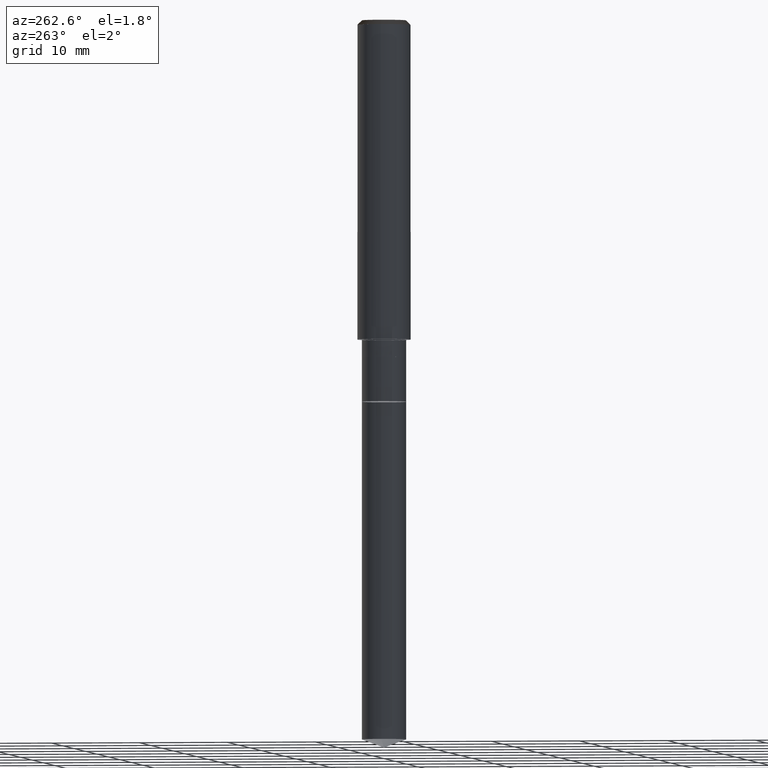
[diagram: clean part render]
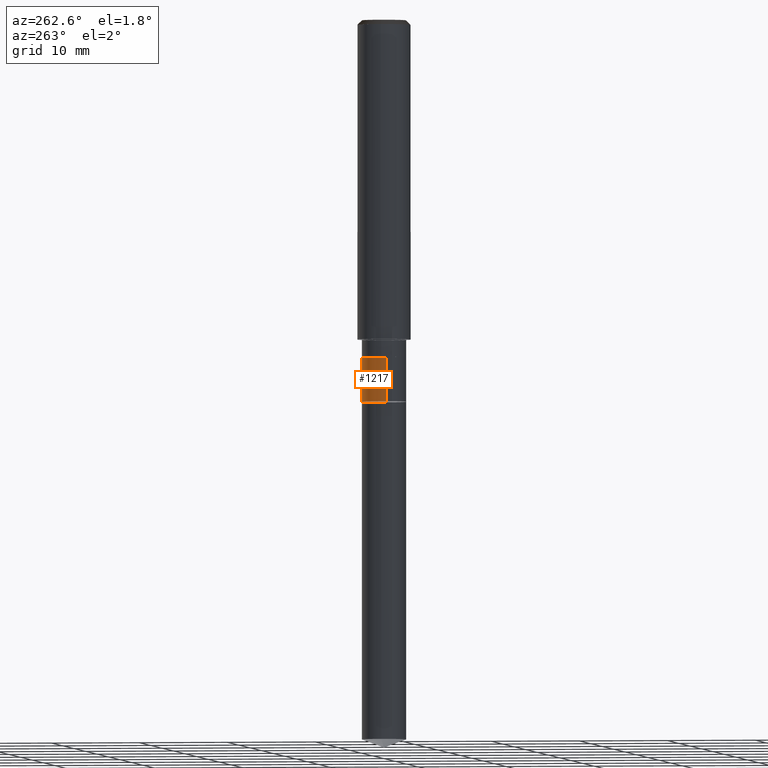
[diagram: same view with one face highlighted and labeled with its STEP entity id]
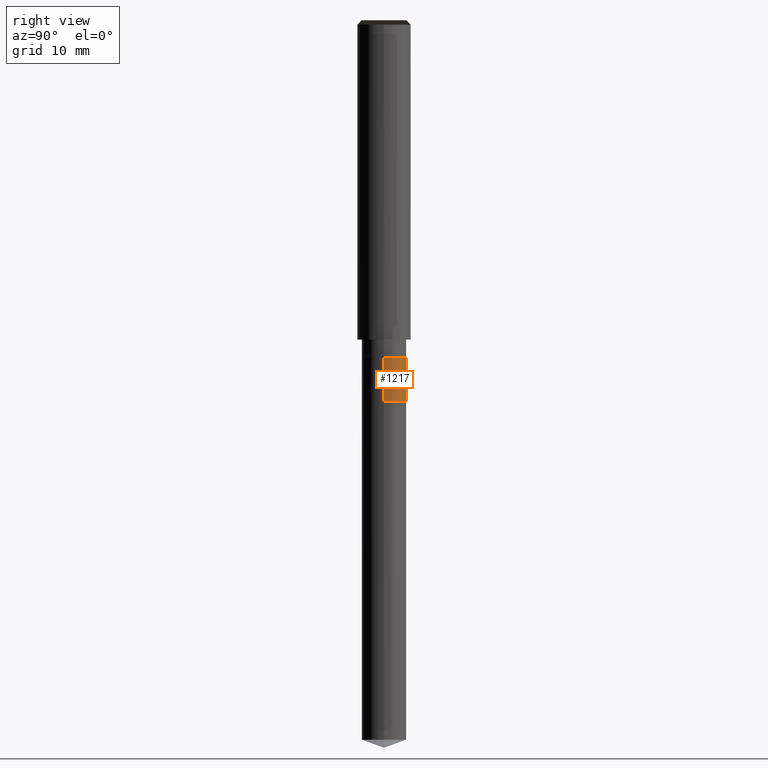
[diagram: same view with one face highlighted and labeled with its STEP entity id]
A machine part, auxiliary view. The second image highlights one B-rep face of the part: STEP entity #1217.
A second angle (right view) of the same face is appended — the face is thin or edge-on in the first view.
In plain terms, the highlighted face is a freeform B-spline surface patch.
Its self-contained STEP definition (entity closure, byte-faithful):
#1016=CARTESIAN_POINT('',(2.5,0.0,-7.0));
#1017=CARTESIAN_POINT('',(2.5,2.5,-7.0));
#1018=CARTESIAN_POINT('',(0.0,2.5,-7.0));
#1019=CARTESIAN_POINT('',(-2.5,2.5,-7.0));
#1020=CARTESIAN_POINT('',(-2.5,0.0,-7.0));
#1028=CARTESIAN_POINT('',(2.5,0.0,-2.0));
#1029=CARTESIAN_POINT('',(2.5,2.5,-2.0));
#1030=CARTESIAN_POINT('',(0.0,2.5,-2.0));
#1031=CARTESIAN_POINT('',(-2.5,2.5,-2.0));
#1032=CARTESIAN_POINT('',(-2.5,0.0,-2.0));
#1198=(
BOUNDED_SURFACE()
B_SPLINE_SURFACE(1,2,(
(#1016,#1017,#1018,#1019,#1020),
(#1028,#1029,#1030,#1031,#1032)
), .UNSPECIFIED.,.F.,.F.,.F.)
B_SPLINE_SURFACE_WITH_KNOTS((2,2),(3,2,3),(
0.0,1.0),(
0.0,0.5,1.0), .UNSPECIFIED.)
GEOMETRIC_REPRESENTATION_ITEM()
RATIONAL_B_SPLINE_SURFACE(((1.0,0.707106781187,1.0,0.707106781187,1.0),
(1.0,0.707106781187,1.0,0.707106781187,1.0)
))
REPRESENTATION_ITEM('')
SURFACE()
);
#1199=(
BOUNDED_CURVE()
B_SPLINE_CURVE(2,(#1020,#1019,#1018,#1017,#1016),.UNSPECIFIED.,.F.,.F.)
B_SPLINE_CURVE_WITH_KNOTS((3,2,3),
(0.0,0.5,1.0),.UNSPECIFIED.)
CURVE()
GEOMETRIC_REPRESENTATION_ITEM()
RATIONAL_B_SPLINE_CURVE((1.0,0.707106781187,1.0,0.707106781187,1.0))
REPRESENTATION_ITEM('')
);
#1200=(
BOUNDED_CURVE()
B_SPLINE_CURVE(1,(#1016,#1028),.UNSPECIFIED.,.F.,.F.)
B_SPLINE_CURVE_WITH_KNOTS((2,2),
(0.0,1.0),.UNSPECIFIED.)
CURVE()
GEOMETRIC_REPRESENTATION_ITEM()
RATIONAL_B_SPLINE_CURVE((1.0,1.0))
REPRESENTATION_ITEM('')
);
#1201=(
BOUNDED_CURVE()
B_SPLINE_CURVE(2,(#1028,#1029,#1030,#1031,#1032),.UNSPECIFIED.,.F.,.F.)
B_SPLINE_CURVE_WITH_KNOTS((3,2,3),
(0.0,0.5,1.0),.UNSPECIFIED.)
CURVE()
GEOMETRIC_REPRESENTATION_ITEM()
RATIONAL_B_SPLINE_CURVE((1.0,0.707106781187,1.0,0.707106781187,1.0))
REPRESENTATION_ITEM('')
);
#1202=(
BOUNDED_CURVE()
B_SPLINE_CURVE(1,(#1032,#1020),.UNSPECIFIED.,.F.,.F.)
B_SPLINE_CURVE_WITH_KNOTS((2,2),
(0.0,1.0),.UNSPECIFIED.)
CURVE()
GEOMETRIC_REPRESENTATION_ITEM()
RATIONAL_B_SPLINE_CURVE((1.0,1.0))
REPRESENTATION_ITEM('')
);
#1203=VERTEX_POINT('',#1016);
#1204=VERTEX_POINT('',#1020);
#1205=VERTEX_POINT('',#1028);
#1206=VERTEX_POINT('',#1032);
#1207=EDGE_CURVE('',#1204,#1203,#1199,.T.);
#1208=EDGE_CURVE('',#1203,#1205,#1200,.T.);
#1209=EDGE_CURVE('',#1205,#1206,#1201,.T.);
#1210=EDGE_CURVE('',#1206,#1204,#1202,.T.);
#1211=ORIENTED_EDGE('',*,*,#1207,.T.);
#1212=ORIENTED_EDGE('',*,*,#1208,.T.);
#1213=ORIENTED_EDGE('',*,*,#1209,.T.);
#1214=ORIENTED_EDGE('',*,*,#1210,.T.);
#1215=EDGE_LOOP('',(#1211,#1212,#1213,#1214));
#1216=FACE_OUTER_BOUND('',#1215,.T.);
#1217=ADVANCED_FACE('',(#1216),#1198,.T.);